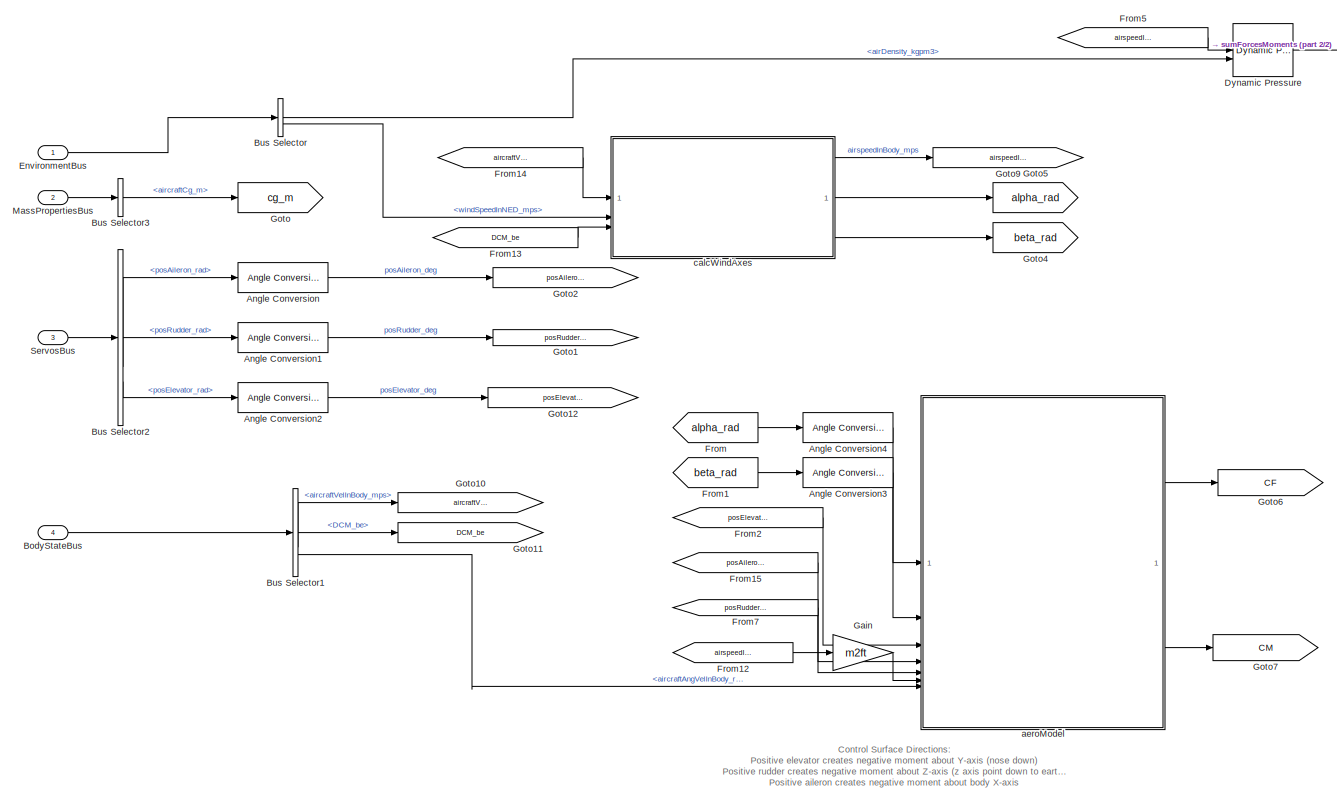
[diagram: root canvas - part 1/2, left side, full height]
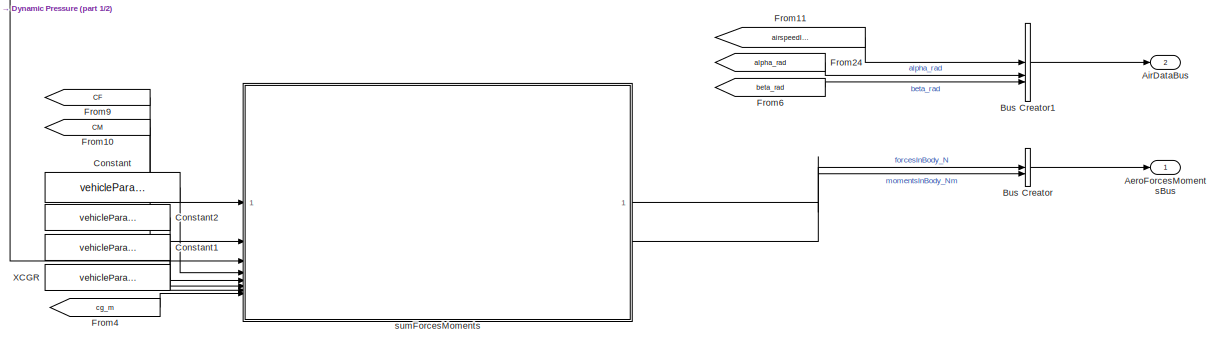
[diagram: root canvas - part 2/2, middle right region]
MODEL slx_f1dea6712e78
KIND model
BLOCK [Outport] AeroForcesMomentsBus
  OutDataTypeStr = Bus: ComponentForcesMomentsBus
BLOCK [Outport] AirDataBus
  OutDataTypeStr = Bus: AirDataBus
  Port = 2
BLOCK [Reference] Angle Conversion  REF=aerolibconvert2/Angle Conversion
  SourceBlock = aerolibconvert2/Angle Conversion
  SourceType = Angle Conversion
BLOCK [Reference] Angle Conversion1  REF=aerolibconvert2/Angle Conversion
  SourceBlock = aerolibconvert2/Angle Conversion
  SourceType = Angle Conversion
BLOCK [Reference] Angle Conversion2  REF=aerolibconvert2/Angle Conversion
  SourceBlock = aerolibconvert2/Angle Conversion
  SourceType = Angle Conversion
BLOCK [Reference] Angle Conversion3  REF=aerolibconvert2/Angle Conversion
  SourceBlock = aerolibconvert2/Angle Conversion
  SourceType = Angle Conversion
BLOCK [Reference] Angle Conversion4  REF=aerolibconvert2/Angle Conversion
  SourceBlock = aerolibconvert2/Angle Conversion
  SourceType = Angle Conversion
BLOCK [Inport] BodyStateBus
  OutDataTypeStr = Bus: BodyStateBus
  Port = 4
BLOCK [BusCreator] Bus Creator
  DisplayOption = bar
  InheritFromInputs = on
  Inputs = 2
BLOCK [BusCreator] Bus Creator1
  DisplayOption = bar
  InheritFromInputs = on
  Inputs = 3
BLOCK [BusSelector] Bus Selector
  OutputSignals = AirEnvironment.airDensity_kgpm3,AirEnvironment.windSpeedInNED_mps
BLOCK [BusSelector] Bus Selector1
  OutputSignals = aircraftVelInBody_mps,DCM_be,aircraftAngVelInBody_radps
BLOCK [BusSelector] Bus Selector2
  OutputSignals = ServosF16Bus.posAileron_rad,ServosF16Bus.posRudder_rad,ServosF16Bus.posElevator_rad
BLOCK [BusSelector] Bus Selector3
  OutputSignals = aircraftCg_m
BLOCK [Constant] Constant
  Value = vehicleParams.SRef_m2
BLOCK [Constant] Constant1
  Value = vehicleParams.bRef_m
BLOCK [Constant] Constant2
  Value = vehicleParams.cRef_m
BLOCK [Reference] Dynamic Pressure  REF=aerolibasang/Dynamic Pressure
  SourceBlock = aerolibasang/Dynamic Pressure
  SourceType = Dynamic Pressure
BLOCK [Inport] EnvironmentBus
  OutDataTypeStr = Bus: EnvironmentBus
BLOCK [From] From
  GotoTag = alpha_rad
BLOCK [From] From1
  GotoTag = beta_rad
BLOCK [From] From10
  GotoTag = CM
BLOCK [From] From11
  GotoTag = airspeedInBody_mps
BLOCK [From] From12
  GotoTag = airspeedInBody_mps
BLOCK [From] From13
  GotoTag = DCM_be
BLOCK [From] From14
  GotoTag = aircraftVelInBody_mps
BLOCK [From] From15
  GotoTag = posAileron_deg
BLOCK [From] From2
  GotoTag = posElevator_deg
BLOCK [From] From24
  GotoTag = alpha_rad
BLOCK [From] From4
  GotoTag = cg_m
BLOCK [From] From5
  GotoTag = airspeedInBody_mps
BLOCK [From] From6
  GotoTag = beta_rad
BLOCK [From] From7
  GotoTag = posRudder_deg
BLOCK [From] From9
  GotoTag = CF
BLOCK [Gain] Gain
  Gain = m2ft
BLOCK [Goto] Goto
  GotoTag = cg_m
BLOCK [Goto] Goto1
  GotoTag = posRudder_deg
BLOCK [Goto] Goto10
  GotoTag = aircraftVelInBody_mps
BLOCK [Goto] Goto11
  GotoTag = DCM_be
BLOCK [Goto] Goto12
  GotoTag = posElevator_deg
BLOCK [Goto] Goto2
  GotoTag = posAileron_deg
BLOCK [Goto] Goto4
  GotoTag = beta_rad
BLOCK [Goto] Goto5
  GotoTag = alpha_rad
BLOCK [Goto] Goto6
  GotoTag = CF
BLOCK [Goto] Goto7
  GotoTag = CM
BLOCK [Goto] Goto9
  GotoTag = airspeedInBody_mps
BLOCK [Inport] MassPropertiesBus
  OutDataTypeStr = Bus: MassPropertiesBus
  Port = 2
BLOCK [Inport] ServosBus
  OutDataTypeStr = Bus: ServosBus
  Port = 3
BLOCK [Constant] XCGR
  Value = vehicleParams.refCG_m
BLOCK [ModelReference] aeroModel
  ModelNameDialog = F16AeroCoefficientsModel.slx
  ModelReferenceVersion = 1.183
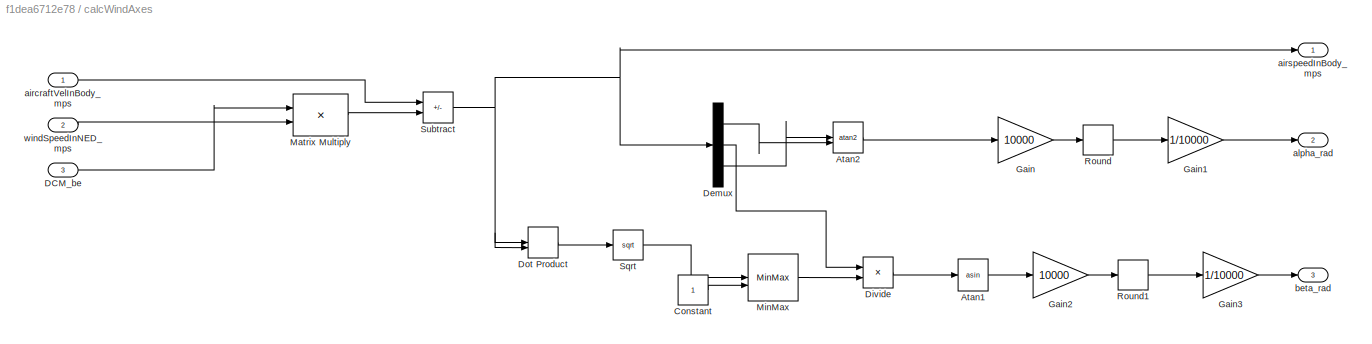
BLOCK [SubSystem] calcWindAxes
BLOCK [Trigonometry] calcWindAxes/Atan1
  Operator = asin
BLOCK [Trigonometry] calcWindAxes/Atan2
  Operator = atan2
BLOCK [Constant] calcWindAxes/Constant
BLOCK [Inport] calcWindAxes/DCM_be
  Port = 3
BLOCK [Demux] calcWindAxes/Demux
  Outputs = 3
BLOCK [Product] calcWindAxes/Divide
  Inputs = */
BLOCK [DotProduct] calcWindAxes/Dot Product
  OutDataTypeStr = Inherit: Inherit via internal rule
BLOCK [Gain] calcWindAxes/Gain
  Gain = 10000
BLOCK [Gain] calcWindAxes/Gain1
  Gain = 1/10000
BLOCK [Gain] calcWindAxes/Gain2
  Gain = 10000
BLOCK [Gain] calcWindAxes/Gain3
  Gain = 1/10000
BLOCK [Product] calcWindAxes/Matrix Multiply
  Multiplication = Matrix(*)
BLOCK [MinMax] calcWindAxes/MinMax
  Function = max
  Inputs = 2
BLOCK [Rounding] calcWindAxes/Round
  Operator = round
BLOCK [Rounding] calcWindAxes/Round1
  Operator = round
BLOCK [Sqrt] calcWindAxes/Sqrt
BLOCK [Sum] calcWindAxes/Subtract
  IconShape = rectangular
  Inputs = +-
BLOCK [Inport] calcWindAxes/aircraftVelInBody_mps
BLOCK [Outport] calcWindAxes/airspeedInBody_mps
BLOCK [Outport] calcWindAxes/alpha_rad
  Port = 2
BLOCK [Outport] calcWindAxes/beta_rad
  Port = 3
BLOCK [Inport] calcWindAxes/windSpeedInNED_mps
  Port = 2
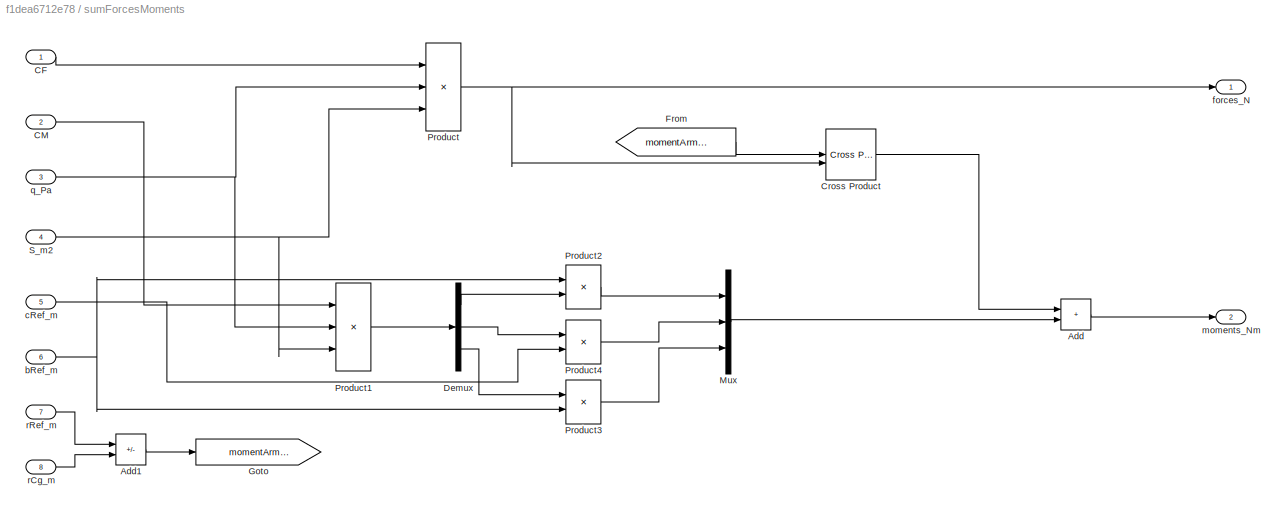
BLOCK [SubSystem] sumForcesMoments
BLOCK [Sum] sumForcesMoments/Add
  IconShape = rectangular
BLOCK [Sum] sumForcesMoments/Add1
  IconShape = rectangular
  Inputs = +-
BLOCK [Inport] sumForcesMoments/CF
BLOCK [Inport] sumForcesMoments/CM
  Port = 2
BLOCK [Reference] sumForcesMoments/Cross Product  REF=matrix_library/Cross Product
  LibrarySourceBlock = simulink/Matrix\nOperations/Cross Product
  SourceBlock = matrix_library/Cross Product
  SourceType = CrossProduct
BLOCK [Demux] sumForcesMoments/Demux
  Outputs = 3
BLOCK [From] sumForcesMoments/From
  GotoTag = momentArm_m
BLOCK [Goto] sumForcesMoments/Goto
  GotoTag = momentArm_m
BLOCK [Mux] sumForcesMoments/Mux
  DisplayOption = bar
  Inputs = 3
BLOCK [Product] sumForcesMoments/Product
  Inputs = 3
BLOCK [Product] sumForcesMoments/Product1
  Inputs = 3
BLOCK [Product] sumForcesMoments/Product2
BLOCK [Product] sumForcesMoments/Product3
BLOCK [Product] sumForcesMoments/Product4
BLOCK [Inport] sumForcesMoments/S_m2
  Port = 4
BLOCK [Inport] sumForcesMoments/bRef_m
  Port = 6
BLOCK [Inport] sumForcesMoments/cRef_m
  Port = 5
BLOCK [Outport] sumForcesMoments/forces_N
BLOCK [Outport] sumForcesMoments/moments_Nm
  Port = 2
BLOCK [Inport] sumForcesMoments/q_Pa
  Port = 3
BLOCK [Inport] sumForcesMoments/rCg_m
  Port = 8
BLOCK [Inport] sumForcesMoments/rRef_m
  Port = 7
ANNOTATION (root): Control Surface Directions: Positive elevator creates negative moment about Y-axis (nose down) Positive rudder creates negative moment about Z-axis (z axis point down to earth) Positive aileron creates negative moment about body X-axis
LINE Angle Conversion1:1 -> Goto1:1
LINE Angle Conversion2:1 -> Goto12:1
LINE Angle Conversion3:1 -> aeroModel:2
LINE Angle Conversion4:1 -> aeroModel:1
LINE Angle Conversion:1 -> Goto2:1
LINE BodyStateBus:1 -> Bus Selector1:1
LINE Bus Creator1:1 -> AirDataBus:1
LINE Bus Creator:1 -> AeroForcesMomentsBus:1
LINE Bus Selector1:1 -> Goto10:1
LINE Bus Selector1:2 -> Goto11:1
LINE Bus Selector1:3 -> aeroModel:7
LINE Bus Selector2:1 -> Angle Conversion:1
LINE Bus Selector2:2 -> Angle Conversion1:1
LINE Bus Selector2:3 -> Angle Conversion2:1
LINE Bus Selector3:1 -> Goto:1
LINE Bus Selector:1 -> Dynamic Pressure:2
LINE Bus Selector:2 -> calcWindAxes:2
LINE Constant1:1 -> sumForcesMoments:6
LINE Constant2:1 -> sumForcesMoments:5
LINE Constant:1 -> sumForcesMoments:4
LINE Dynamic Pressure:1 -> sumForcesMoments:3
LINE EnvironmentBus:1 -> Bus Selector:1
LINE From10:1 -> sumForcesMoments:2
LINE From11:1 -> Bus Creator1:1
LINE From12:1 -> Gain:1
LINE From13:1 -> calcWindAxes:3
LINE From14:1 -> calcWindAxes:1
LINE From15:1 -> aeroModel:4
LINE From1:1 -> Angle Conversion3:1
LINE From24:1 -> Bus Creator1:2
LINE From2:1 -> aeroModel:3
LINE From4:1 -> sumForcesMoments:8
LINE From5:1 -> Dynamic Pressure:1
LINE From6:1 -> Bus Creator1:3
LINE From7:1 -> aeroModel:5
LINE From9:1 -> sumForcesMoments:1
LINE From:1 -> Angle Conversion4:1
LINE Gain:1 -> aeroModel:6
LINE MassPropertiesBus:1 -> Bus Selector3:1
LINE ServosBus:1 -> Bus Selector2:1
LINE XCGR:1 -> sumForcesMoments:7
LINE aeroModel:1 -> Goto6:1
LINE aeroModel:2 -> Goto7:1
LINE calcWindAxes/Atan1:1 -> calcWindAxes/Gain2:1
LINE calcWindAxes/Atan2:1 -> calcWindAxes/Gain:1
LINE calcWindAxes/Constant:1 -> calcWindAxes/MinMax:2
LINE calcWindAxes/DCM_be:1 -> calcWindAxes/Matrix Multiply:1
LINE calcWindAxes/Demux:1 -> calcWindAxes/Atan2:2
LINE calcWindAxes/Demux:2 -> calcWindAxes/Divide:1
LINE calcWindAxes/Demux:3 -> calcWindAxes/Atan2:1
LINE calcWindAxes/Divide:1 -> calcWindAxes/Atan1:1
LINE calcWindAxes/Dot Product:1 -> calcWindAxes/Sqrt:1
LINE calcWindAxes/Gain1:1 -> calcWindAxes/alpha_rad:1
LINE calcWindAxes/Gain2:1 -> calcWindAxes/Round1:1
LINE calcWindAxes/Gain3:1 -> calcWindAxes/beta_rad:1
LINE calcWindAxes/Gain:1 -> calcWindAxes/Round:1
LINE calcWindAxes/Matrix Multiply:1 -> calcWindAxes/Subtract:2
LINE calcWindAxes/MinMax:1 -> calcWindAxes/Divide:2
LINE calcWindAxes/Round1:1 -> calcWindAxes/Gain3:1
LINE calcWindAxes/Round:1 -> calcWindAxes/Gain1:1
LINE calcWindAxes/Sqrt:1 -> calcWindAxes/MinMax:1
NET calcWindAxes/Subtract:1 -> calcWindAxes/Demux:1, calcWindAxes/Dot Product:1, calcWindAxes/Dot Product:2, calcWindAxes/airspeedInBody_mps:1
LINE calcWindAxes/aircraftVelInBody_mps:1 -> calcWindAxes/Subtract:1
LINE calcWindAxes/windSpeedInNED_mps:1 -> calcWindAxes/Matrix Multiply:2
LINE calcWindAxes:1 -> Goto9:1
LINE calcWindAxes:2 -> Goto5:1
LINE calcWindAxes:3 -> Goto4:1
LINE sumForcesMoments/Add1:1 -> sumForcesMoments/Goto:1
LINE sumForcesMoments/Add:1 -> sumForcesMoments/moments_Nm:1
LINE sumForcesMoments/CF:1 -> sumForcesMoments/Product:1
LINE sumForcesMoments/CM:1 -> sumForcesMoments/Product1:1
LINE sumForcesMoments/Cross Product:1 -> sumForcesMoments/Add:1
LINE sumForcesMoments/Demux:1 -> sumForcesMoments/Product2:2
LINE sumForcesMoments/Demux:2 -> sumForcesMoments/Product4:1
LINE sumForcesMoments/Demux:3 -> sumForcesMoments/Product3:1
LINE sumForcesMoments/From:1 -> sumForcesMoments/Cross Product:1
LINE sumForcesMoments/Mux:1 -> sumForcesMoments/Add:2
LINE sumForcesMoments/Product1:1 -> sumForcesMoments/Demux:1
LINE sumForcesMoments/Product2:1 -> sumForcesMoments/Mux:1
LINE sumForcesMoments/Product3:1 -> sumForcesMoments/Mux:3
LINE sumForcesMoments/Product4:1 -> sumForcesMoments/Mux:2
NET sumForcesMoments/Product:1 -> sumForcesMoments/Cross Product:2, sumForcesMoments/forces_N:1
NET sumForcesMoments/S_m2:1 -> sumForcesMoments/Product1:3, sumForcesMoments/Product:3
NET sumForcesMoments/bRef_m:1 -> sumForcesMoments/Product2:1, sumForcesMoments/Product3:2
LINE sumForcesMoments/cRef_m:1 -> sumForcesMoments/Product4:2
NET sumForcesMoments/q_Pa:1 -> sumForcesMoments/Product1:2, sumForcesMoments/Product:2
LINE sumForcesMoments/rCg_m:1 -> sumForcesMoments/Add1:2
LINE sumForcesMoments/rRef_m:1 -> sumForcesMoments/Add1:1
LINE sumForcesMoments:1 -> Bus Creator:1
LINE sumForcesMoments:2 -> Bus Creator:2
note: NET lines group one-source signal fan-out (src -> all destinations, sorted); 1:1 wires keep LINE
